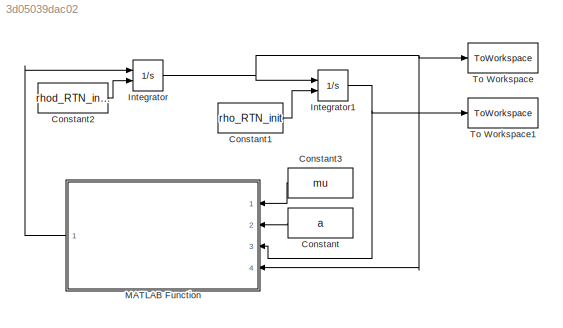
MODEL slx_3d05039dac02
KIND model
CONFIG AbsTol = auto
CONFIG EnableMultiTasking = off
CONFIG FixedStep = stepSize
CONFIG MaxStep = auto
CONFIG MinStep = auto
CONFIG RelTol = 1e-3
CONFIG SampleTimeConstraint = Unconstrained
CONFIG Solver = FixedStepAuto
CONFIG SolverName = FixedStepAuto
CONFIG StartTime = 0.0
CONFIG StopTime = stopTime
BLOCK [Constant] Constant
  Value = a
BLOCK [Constant] Constant1
  Value = rho_RTN_init
BLOCK [Constant] Constant2
  Value = rhod_RTN_init
BLOCK [Constant] Constant3
  Value = mu
BLOCK [Integrator] Integrator
  InitialConditionSource = external
  Ports = [2, 1]
BLOCK [Integrator] Integrator1
  InitialConditionSource = external
  Ports = [2, 1]
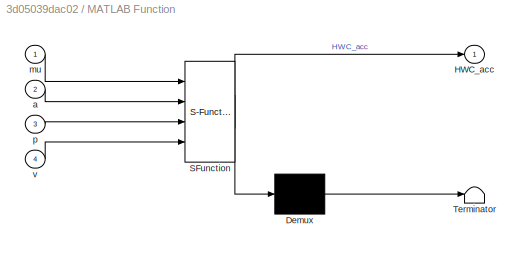
BLOCK [SubSystem] MATLAB Function
  ErrorFcn = Stateflow.Translate.translate
  PermitHierarchicalResolution = ExplicitOnly
  Ports = [4, 1]
  RequestExecContextInheritance = off
  SFBlockType = MATLAB Function
  TreatAsAtomicUnit = on
BLOCK [Demux] MATLAB Function/ Demux 
  Outputs = 1
  Ports = [1, 1]
BLOCK [S-Function] MATLAB Function/ SFunction 
  EnableBusSupport = on
  FunctionName = sf_sfun
  PortCounts = [4 2]
  Ports = [4, 2]
  SFcnIsStateOwnerBlock = off
  SFunctionDeploymentMode = off
  Tag = Stateflow S-Function HWC_accel 2
BLOCK [Terminator] MATLAB Function/ Terminator 
BLOCK [Outport] MATLAB Function/HWC_acc
  IconDisplay = Port number
BLOCK [Inport] MATLAB Function/a
  IconDisplay = Port number
  Port = 2
BLOCK [Inport] MATLAB Function/mu
  IconDisplay = Port number
BLOCK [Inport] MATLAB Function/p
  IconDisplay = Port number
  Port = 3
BLOCK [Inport] MATLAB Function/v
  IconDisplay = Port number
  Port = 4
BLOCK [ToWorkspace] To Workspace
  FixptAsFi = on
  MaxDataPoints = inf
  Ports = [1]
  SampleTime = -1
  Save2DSignal = 3-D array (concatenate along third dimension)
  VariableName = vel_RTN_HCW
BLOCK [ToWorkspace] To Workspace1
  FixptAsFi = on
  MaxDataPoints = inf
  Ports = [1]
  SampleTime = -1
  Save2DSignal = 3-D array (concatenate along third dimension)
  VariableName = pos_RTN_HCW
LINE Constant1:1 -> Integrator1:2
LINE Constant2:1 -> Integrator:2
LINE Constant3:1 -> MATLAB Function:1
LINE Constant:1 -> MATLAB Function:2
NET Integrator1:1 -> MATLAB Function:3, To Workspace1:1
NET Integrator:1 -> Integrator1:1, MATLAB Function:4, To Workspace:1
LINE MATLAB Function:1 -> Integrator:1
note: NET lines group one-source signal fan-out (src -> all destinations, sorted); 1:1 wires keep LINE
CHART MATLAB Function states=1 transitions=1
  STATE_LABEL 'eML_blk_kernel()'
  STATE_LABEL 'SCRIPT:\nfunction HWC_acc  = HWC_accel_prop(mu,a,p,v)\n\nn = sqrt(mu/a^3);\n\nxdd = 2*n*v(2)+3*n^2*p(1);\nydd = -2*n*v(1);\nzdd = -n^2*p(3);\n\nHWC_acc = [xdd,ydd,zdd];\n\nend'
